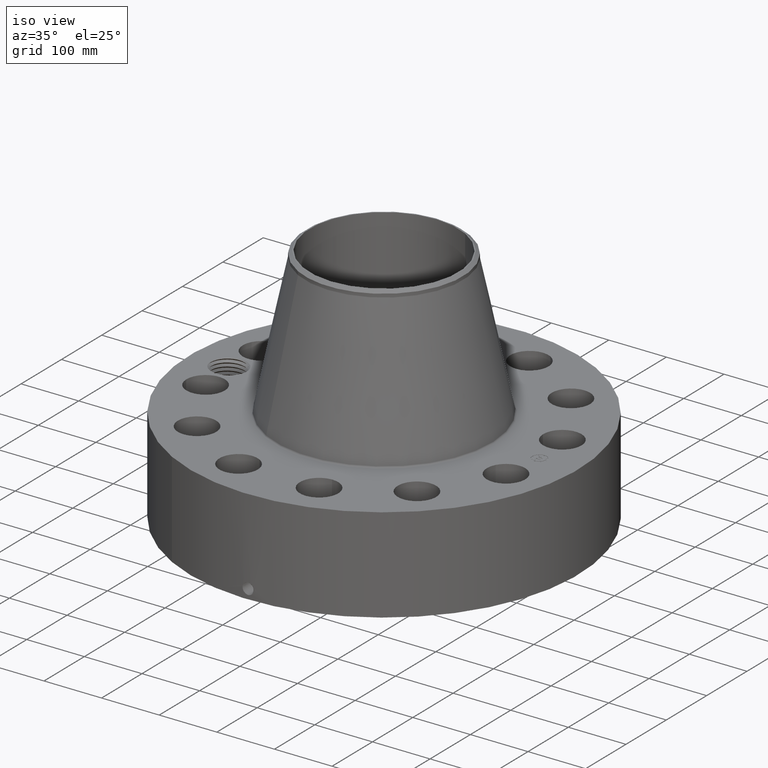
[diagram: clean part render]
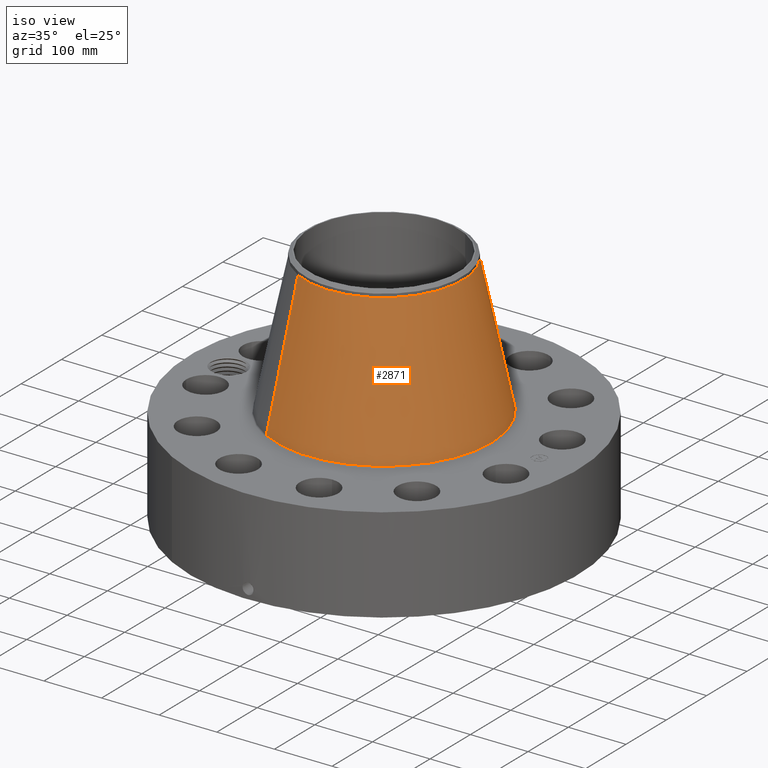
[diagram: same view with one face highlighted and labeled with its STEP entity id]
A machine part, iso view. The second image highlights one B-rep face of the part: STEP entity #2871.
In plain terms, the highlighted conical surface has half-angle 11.782 deg.
Its self-contained STEP definition (entity closure, byte-faithful):
#2088=AXIS2_PLACEMENT_3D('Circle Axis2P3D',#2086,#2087,$) ;
#2844=AXIS2_PLACEMENT_3D('Cone Axis2P3D',#2841,#2842,#2843) ;
#2855=AXIS2_PLACEMENT_3D('Circle Axis2P3D',#2853,#2854,$) ;
#2083=CARTESIAN_POINT('Vertex',(3.52621369792,6.45469087817,6.84549767643)) ;
#2086=CARTESIAN_POINT('Axis2P3D Location',(0.,0.,6.84549767643)) ;
#2090=CARTESIAN_POINT('Vertex',(-3.52621369792,-6.45469087817,6.84549767643)) ;
#2841=CARTESIAN_POINT('Axis2P3D Location',(0.,0.,16.3386295902)) ;
#2846=CARTESIAN_POINT('Line Origine',(3.05156298396,5.58584857417,11.5920636333)) ;
#2850=CARTESIAN_POINT('Vertex',(2.57691227001,4.71700627018,16.3386295902)) ;
#2853=CARTESIAN_POINT('Axis2P3D Location',(0.,0.,16.3386295902)) ;
#2857=CARTESIAN_POINT('Vertex',(-2.57691227001,-4.71700627018,16.3386295902)) ;
#2860=CARTESIAN_POINT('Line Origine',(-3.05156298396,-5.58584857417,11.5920636333)) ;
#2087=DIRECTION('Axis2P3D Direction',(0.,0.,-0.0393700787402)) ;
#2842=DIRECTION('Axis2P3D Direction',(0.,0.,-0.0393700787402)) ;
#2843=DIRECTION('Axis2P3D XDirection',(-0.0188750212049,-0.0345504945626,0.)) ;
#2847=DIRECTION('Vector Direction',(0.00385401564558,0.00705472831853,-0.0385406340342)) ;
#2854=DIRECTION('Axis2P3D Direction',(0.,0.,-0.0393700787402)) ;
#2861=DIRECTION('Vector Direction',(-0.00385401564558,-0.00705472831853,-0.0385406340342)) ;
#2848=VECTOR('Line Direction',#2847,0.0393700787402) ;
#2862=VECTOR('Line Direction',#2861,0.0393700787402) ;
#2866=ORIENTED_EDGE('',*,*,#2092,.F.) ;
#2867=ORIENTED_EDGE('',*,*,#2852,.T.) ;
#2868=ORIENTED_EDGE('',*,*,#2859,.T.) ;
#2869=ORIENTED_EDGE('',*,*,#2864,.F.) ;
#2871=ADVANCED_FACE('PartBody',(#2870),#2845,.T.) ;
#2089=CIRCLE('generated circle',#2088,7.35508105843) ;
#2856=CIRCLE('generated circle',#2855,5.37500000002) ;
#2845=CONICAL_SURFACE('Cone',#2844,5.37500000002,0.205632147331) ;
#2092=EDGE_CURVE('',#2084,#2091,#2089,.T.) ;
#2852=EDGE_CURVE('',#2084,#2851,#2849,.F.) ;
#2859=EDGE_CURVE('',#2851,#2858,#2856,.T.) ;
#2864=EDGE_CURVE('',#2091,#2858,#2863,.F.) ;
#2865=EDGE_LOOP('',(#2866,#2867,#2868,#2869)) ;
#2870=FACE_OUTER_BOUND('',#2865,.T.) ;
#2849=LINE('Line',#2846,#2848) ;
#2863=LINE('Line',#2860,#2862) ;
#2084=VERTEX_POINT('',#2083) ;
#2091=VERTEX_POINT('',#2090) ;
#2851=VERTEX_POINT('',#2850) ;
#2858=VERTEX_POINT('',#2857) ;